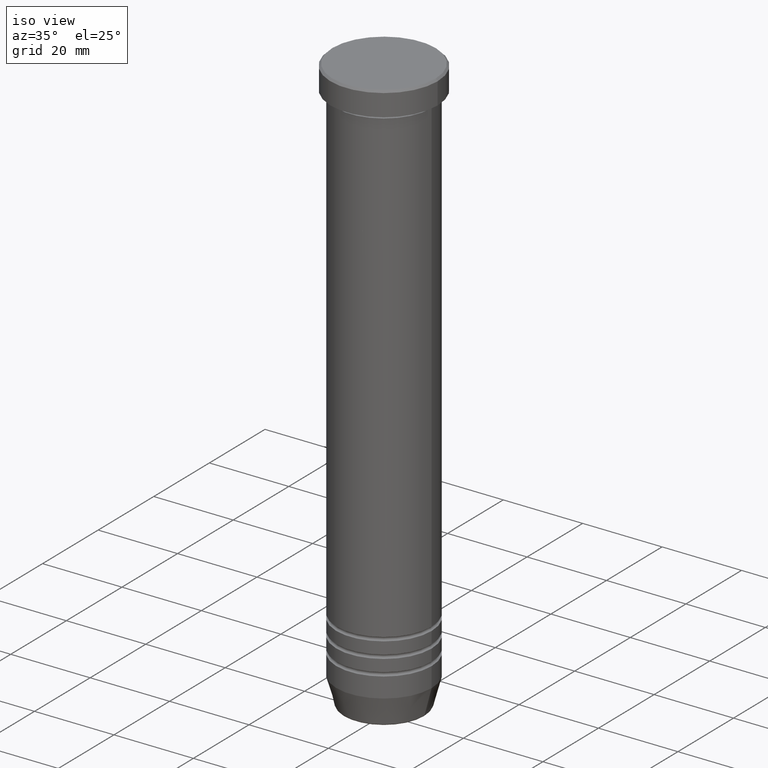
[diagram: clean part render]
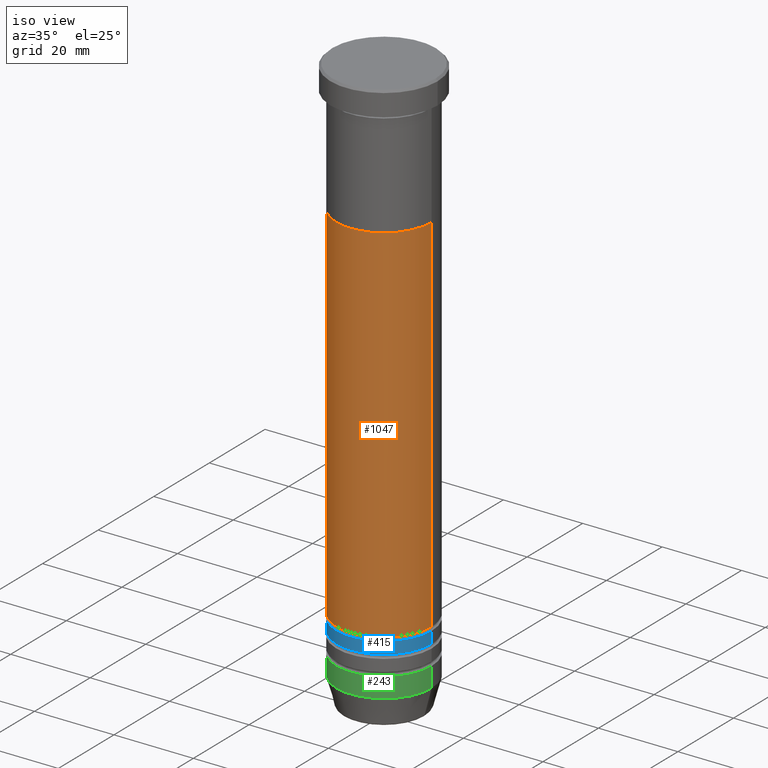
[diagram: same view with three faces highlighted in distinct colors, each labeled with its STEP entity id]
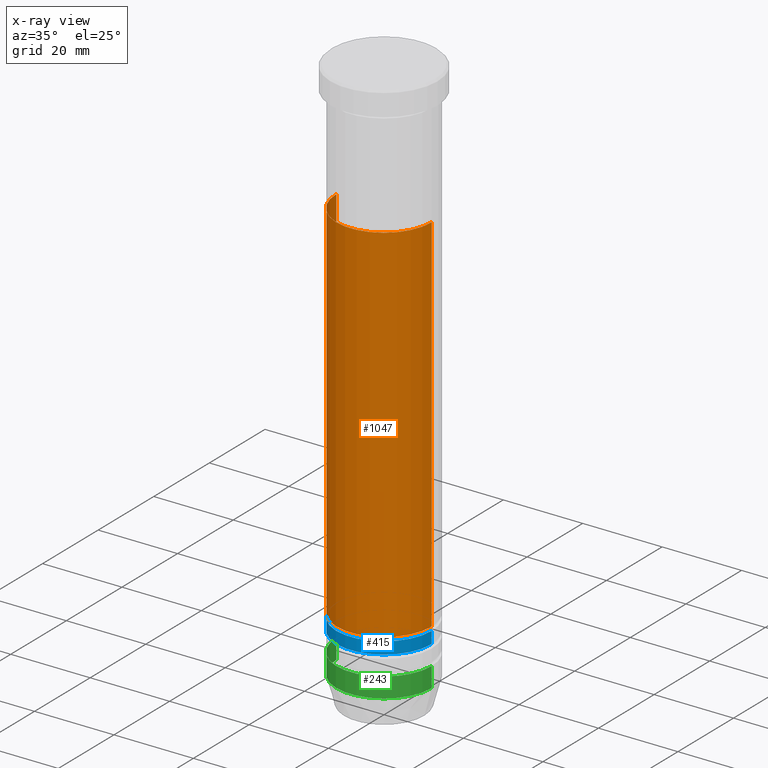
[diagram: x-ray of the same camera — body ghosted, the three highlighted faces saturated]
A machine part, iso view with three faces highlighted in distinct colors.
The next image is the same camera in x-ray (body ghosted, the three faces saturated) — at least one of them is partly hidden behind the body in this view.
Their STEP definitions:

[orange] entity #1047 — the highlighted cylindrical surface (partial cylindrical patch) has radius 12 mm, axis along (-0, -0, 1).
#5 = CARTESIAN_POINT ( 'NONE',  ( -11.99999999999999467, 1.469576158976823553E-15, -125.0000000000000284 ) ) ;
#42 = EDGE_CURVE ( 'NONE', #382, #774, #863, .T. ) ;
#57 = CARTESIAN_POINT ( 'NONE',  ( -12.00000000000000178, 1.469576158976824144E-15, -33.00000000000000000 ) ) ;
#61 = LINE ( 'NONE', #589, #150 ) ;
#121 = AXIS2_PLACEMENT_3D ( 'NONE', #640, #730, #375 ) ;
#132 = CARTESIAN_POINT ( 'NONE',  ( 0.000000000000000000, 0.000000000000000000, 0.000000000000000000 ) ) ;
#150 = VECTOR ( 'NONE', #954, 1000.000000000000000 ) ;
#215 = DIRECTION ( 'NONE',  ( 1.000000000000000000, 0.000000000000000000, 0.000000000000000000 ) ) ;
#288 = ORIENTED_EDGE ( 'NONE', *, *, #453, .F. ) ;
#306 = DIRECTION ( 'NONE',  ( 1.000000000000000000, 0.000000000000000000, 0.000000000000000000 ) ) ;
#319 = ORIENTED_EDGE ( 'NONE', *, *, #1115, .T. ) ;
#356 = CARTESIAN_POINT ( 'NONE',  ( 12.00000000000000178, 0.000000000000000000, -33.00000000000000000 ) ) ;
#375 = DIRECTION ( 'NONE',  ( 1.000000000000000000, 0.000000000000000000, 0.000000000000000000 ) ) ;
#376 = CIRCLE ( 'NONE', #411, 11.99999999999999467 ) ;
#382 = VERTEX_POINT ( 'NONE', #57 ) ;
#393 = ORIENTED_EDGE ( 'NONE', *, *, #42, .F. ) ;
#411 = AXIS2_PLACEMENT_3D ( 'NONE', #561, #1107, #306 ) ;
#437 = EDGE_LOOP ( 'NONE', ( #288, #830, #319, #393 ) ) ;
#453 = EDGE_CURVE ( 'NONE', #521, #382, #61, .T. ) ;
#521 = VERTEX_POINT ( 'NONE', #5 ) ;
#561 = CARTESIAN_POINT ( 'NONE',  ( 0.000000000000000000, 0.000000000000000000, -125.0000000000000284 ) ) ;
#571 = CARTESIAN_POINT ( 'NONE',  ( 11.99999999999999822, 0.000000000000000000, 0.000000000000000000 ) ) ;
#582 = DIRECTION ( 'NONE',  ( -0.000000000000000000, -0.000000000000000000, 1.000000000000000000 ) ) ;
#589 = CARTESIAN_POINT ( 'NONE',  ( -11.99999999999999822, 1.469576158976823750E-15, 0.000000000000000000 ) ) ;
#629 = VERTEX_POINT ( 'NONE', #776 ) ;
#637 = AXIS2_PLACEMENT_3D ( 'NONE', #132, #742, #215 ) ;
#640 = CARTESIAN_POINT ( 'NONE',  ( 0.000000000000000000, 0.000000000000000000, -33.00000000000000000 ) ) ;
#730 = DIRECTION ( 'NONE',  ( -0.000000000000000000, -0.000000000000000000, 1.000000000000000000 ) ) ;
#742 = DIRECTION ( 'NONE',  ( -0.000000000000000000, -0.000000000000000000, 1.000000000000000000 ) ) ;
#774 = VERTEX_POINT ( 'NONE', #356 ) ;
#776 = CARTESIAN_POINT ( 'NONE',  ( 11.99999999999999467, 0.000000000000000000, -125.0000000000000284 ) ) ;
#830 = ORIENTED_EDGE ( 'NONE', *, *, #1038, .T. ) ;
#842 = LINE ( 'NONE', #571, #1043 ) ;
#863 = CIRCLE ( 'NONE', #121, 12.00000000000000178 ) ;
#918 = CYLINDRICAL_SURFACE ( 'NONE', #637, 11.99999999999999822 ) ;
#954 = DIRECTION ( 'NONE',  ( -0.000000000000000000, -0.000000000000000000, 1.000000000000000000 ) ) ;
#998 = FACE_OUTER_BOUND ( 'NONE', #437, .T. ) ;
#1038 = EDGE_CURVE ( 'NONE', #521, #629, #376, .T. ) ;
#1043 = VECTOR ( 'NONE', #582, 1000.000000000000000 ) ;
#1047 = ADVANCED_FACE ( 'NONE', ( #998 ), #918, .T. ) ;
#1107 = DIRECTION ( 'NONE',  ( -0.000000000000000000, -0.000000000000000000, 1.000000000000000000 ) ) ;
#1115 = EDGE_CURVE ( 'NONE', #629, #774, #842, .T. ) ;

[blue] entity #415 — the highlighted cylindrical surface (partial cylindrical patch) has radius 12 mm, axis along (-0, -0, 1).
#26 = ORIENTED_EDGE ( 'NONE', *, *, #1028, .F. ) ;
#34 = CIRCLE ( 'NONE', #102, 12.00000000000000178 ) ;
#46 = LINE ( 'NONE', #570, #1062 ) ;
#102 = AXIS2_PLACEMENT_3D ( 'NONE', #644, #827, #1112 ) ;
#147 = EDGE_CURVE ( 'NONE', #283, #577, #882, .T. ) ;
#265 = ORIENTED_EDGE ( 'NONE', *, *, #147, .T. ) ;
#283 = VERTEX_POINT ( 'NONE', #309 ) ;
#307 = EDGE_LOOP ( 'NONE', ( #1013, #542, #265, #26 ) ) ;
#309 = CARTESIAN_POINT ( 'NONE',  ( 12.00000000000000000, 0.000000000000000000, -129.0000000000000284 ) ) ;
#326 = DIRECTION ( 'NONE',  ( -0.000000000000000000, -0.000000000000000000, 1.000000000000000000 ) ) ;
#332 = DIRECTION ( 'NONE',  ( -0.000000000000000000, -0.000000000000000000, 1.000000000000000000 ) ) ;
#349 = CARTESIAN_POINT ( 'NONE',  ( 12.00000000000000000, 0.000000000000000000, 0.000000000000000000 ) ) ;
#387 = EDGE_CURVE ( 'NONE', #975, #283, #606, .T. ) ;
#392 = AXIS2_PLACEMENT_3D ( 'NONE', #1051, #332, #488 ) ;
#401 = CARTESIAN_POINT ( 'NONE',  ( 0.000000000000000000, 0.000000000000000000, -129.0000000000000284 ) ) ;
#415 = ADVANCED_FACE ( 'NONE', ( #685 ), #957, .T. ) ;
#488 = DIRECTION ( 'NONE',  ( 1.000000000000000000, 0.000000000000000000, 0.000000000000000000 ) ) ;
#542 = ORIENTED_EDGE ( 'NONE', *, *, #387, .T. ) ;
#551 = AXIS2_PLACEMENT_3D ( 'NONE', #401, #326, #939 ) ;
#570 = CARTESIAN_POINT ( 'NONE',  ( -12.00000000000000000, 1.469576158976823947E-15, 0.000000000000000000 ) ) ;
#577 = VERTEX_POINT ( 'NONE', #790 ) ;
#606 = CIRCLE ( 'NONE', #551, 12.00000000000000000 ) ;
#618 = DIRECTION ( 'NONE',  ( -0.000000000000000000, -0.000000000000000000, 1.000000000000000000 ) ) ;
#644 = CARTESIAN_POINT ( 'NONE',  ( 0.000000000000000000, 0.000000000000000000, -126.0000000000000284 ) ) ;
#685 = FACE_OUTER_BOUND ( 'NONE', #307, .T. ) ;
#741 = DIRECTION ( 'NONE',  ( -0.000000000000000000, -0.000000000000000000, 1.000000000000000000 ) ) ;
#790 = CARTESIAN_POINT ( 'NONE',  ( 12.00000000000000178, 0.000000000000000000, -126.0000000000000284 ) ) ;
#802 = EDGE_CURVE ( 'NONE', #975, #902, #46, .T. ) ;
#827 = DIRECTION ( 'NONE',  ( -0.000000000000000000, -0.000000000000000000, 1.000000000000000000 ) ) ;
#845 = VECTOR ( 'NONE', #618, 1000.000000000000000 ) ;
#880 = CARTESIAN_POINT ( 'NONE',  ( -12.00000000000000355, 1.469576158976824342E-15, -126.0000000000000284 ) ) ;
#882 = LINE ( 'NONE', #349, #845 ) ;
#902 = VERTEX_POINT ( 'NONE', #880 ) ;
#939 = DIRECTION ( 'NONE',  ( 1.000000000000000000, 0.000000000000000000, 0.000000000000000000 ) ) ;
#957 = CYLINDRICAL_SURFACE ( 'NONE', #392, 12.00000000000000000 ) ;
#975 = VERTEX_POINT ( 'NONE', #981 ) ;
#981 = CARTESIAN_POINT ( 'NONE',  ( -12.00000000000000000, 1.469576158976823947E-15, -129.0000000000000284 ) ) ;
#1013 = ORIENTED_EDGE ( 'NONE', *, *, #802, .F. ) ;
#1028 = EDGE_CURVE ( 'NONE', #902, #577, #34, .T. ) ;
#1051 = CARTESIAN_POINT ( 'NONE',  ( 0.000000000000000000, 0.000000000000000000, 0.000000000000000000 ) ) ;
#1062 = VECTOR ( 'NONE', #741, 1000.000000000000000 ) ;
#1112 = DIRECTION ( 'NONE',  ( 1.000000000000000000, 0.000000000000000000, 0.000000000000000000 ) ) ;

[green] entity #243 — the highlighted cylindrical surface (partial cylindrical patch) has radius 12 mm, axis along (-0, -0, 1).
#23 = LINE ( 'NONE', #1019, #31 ) ;
#31 = VECTOR ( 'NONE', #849, 1000.000000000000000 ) ;
#115 = CARTESIAN_POINT ( 'NONE',  ( -12.00000000000000178, 1.469576158976824144E-15, -139.0000000000000000 ) ) ;
#118 = VERTEX_POINT ( 'NONE', #874 ) ;
#127 = DIRECTION ( 'NONE',  ( -0.000000000000000000, -0.000000000000000000, 1.000000000000000000 ) ) ;
#131 = CYLINDRICAL_SURFACE ( 'NONE', #841, 12.00000000000000178 ) ;
#174 = CARTESIAN_POINT ( 'NONE',  ( 12.00000000000000178, 0.000000000000000000, -134.0000000000000000 ) ) ;
#227 = DIRECTION ( 'NONE',  ( 1.000000000000000000, 0.000000000000000000, 0.000000000000000000 ) ) ;
#234 = CARTESIAN_POINT ( 'NONE',  ( -12.00000000000000178, 1.469576158976824144E-15, 0.000000000000000000 ) ) ;
#243 = ADVANCED_FACE ( 'NONE', ( #564 ), #131, .T. ) ;
#247 = EDGE_CURVE ( 'NONE', #1088, #1018, #894, .T. ) ;
#290 = CARTESIAN_POINT ( 'NONE',  ( -12.00000000000000178, 1.469576158976824144E-15, -134.0000000000000000 ) ) ;
#298 = CIRCLE ( 'NONE', #875, 12.00000000000000178 ) ;
#371 = EDGE_CURVE ( 'NONE', #118, #1018, #23, .T. ) ;
#372 = VECTOR ( 'NONE', #584, 1000.000000000000000 ) ;
#404 = DIRECTION ( 'NONE',  ( -0.000000000000000000, -0.000000000000000000, 1.000000000000000000 ) ) ;
#413 = CARTESIAN_POINT ( 'NONE',  ( 0.000000000000000000, 0.000000000000000000, -139.0000000000000000 ) ) ;
#427 = EDGE_CURVE ( 'NONE', #1076, #118, #298, .T. ) ;
#433 = EDGE_CURVE ( 'NONE', #1076, #1088, #865, .T. ) ;
#468 = CARTESIAN_POINT ( 'NONE',  ( 0.000000000000000000, 0.000000000000000000, 0.000000000000000000 ) ) ;
#483 = DIRECTION ( 'NONE',  ( -0.000000000000000000, -0.000000000000000000, 1.000000000000000000 ) ) ;
#531 = DIRECTION ( 'NONE',  ( 1.000000000000000000, 0.000000000000000000, 0.000000000000000000 ) ) ;
#549 = ORIENTED_EDGE ( 'NONE', *, *, #247, .F. ) ;
#564 = FACE_OUTER_BOUND ( 'NONE', #1022, .T. ) ;
#584 = DIRECTION ( 'NONE',  ( -0.000000000000000000, -0.000000000000000000, 1.000000000000000000 ) ) ;
#749 = ORIENTED_EDGE ( 'NONE', *, *, #427, .T. ) ;
#762 = CARTESIAN_POINT ( 'NONE',  ( 0.000000000000000000, 0.000000000000000000, -134.0000000000000000 ) ) ;
#841 = AXIS2_PLACEMENT_3D ( 'NONE', #468, #483, #531 ) ;
#846 = ORIENTED_EDGE ( 'NONE', *, *, #371, .T. ) ;
#849 = DIRECTION ( 'NONE',  ( -0.000000000000000000, -0.000000000000000000, 1.000000000000000000 ) ) ;
#865 = LINE ( 'NONE', #234, #372 ) ;
#874 = CARTESIAN_POINT ( 'NONE',  ( 12.00000000000000178, 0.000000000000000000, -139.0000000000000000 ) ) ;
#875 = AXIS2_PLACEMENT_3D ( 'NONE', #413, #404, #1129 ) ;
#894 = CIRCLE ( 'NONE', #1135, 12.00000000000000178 ) ;
#1018 = VERTEX_POINT ( 'NONE', #174 ) ;
#1019 = CARTESIAN_POINT ( 'NONE',  ( 12.00000000000000178, 0.000000000000000000, 0.000000000000000000 ) ) ;
#1022 = EDGE_LOOP ( 'NONE', ( #1109, #749, #846, #549 ) ) ;
#1076 = VERTEX_POINT ( 'NONE', #115 ) ;
#1088 = VERTEX_POINT ( 'NONE', #290 ) ;
#1109 = ORIENTED_EDGE ( 'NONE', *, *, #433, .F. ) ;
#1129 = DIRECTION ( 'NONE',  ( 1.000000000000000000, 0.000000000000000000, 0.000000000000000000 ) ) ;
#1135 = AXIS2_PLACEMENT_3D ( 'NONE', #762, #127, #227 ) ;